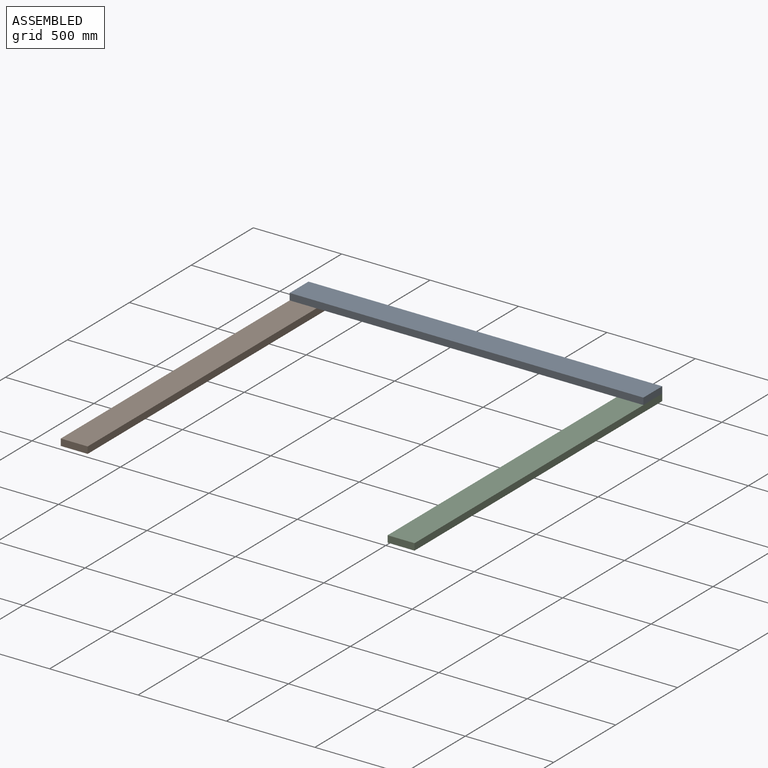
[diagram: assembled view]
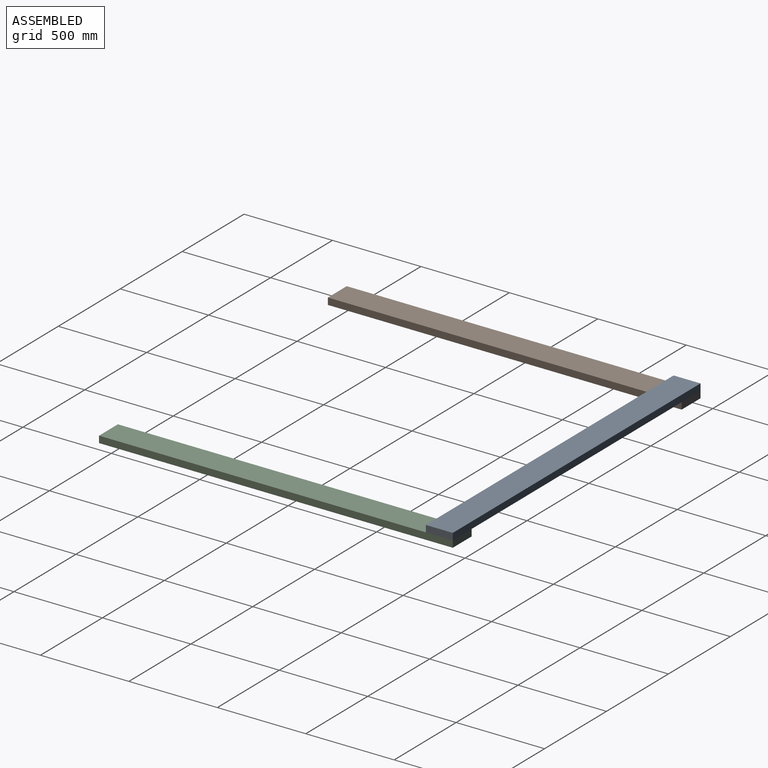
[diagram: assembled view, second angle]
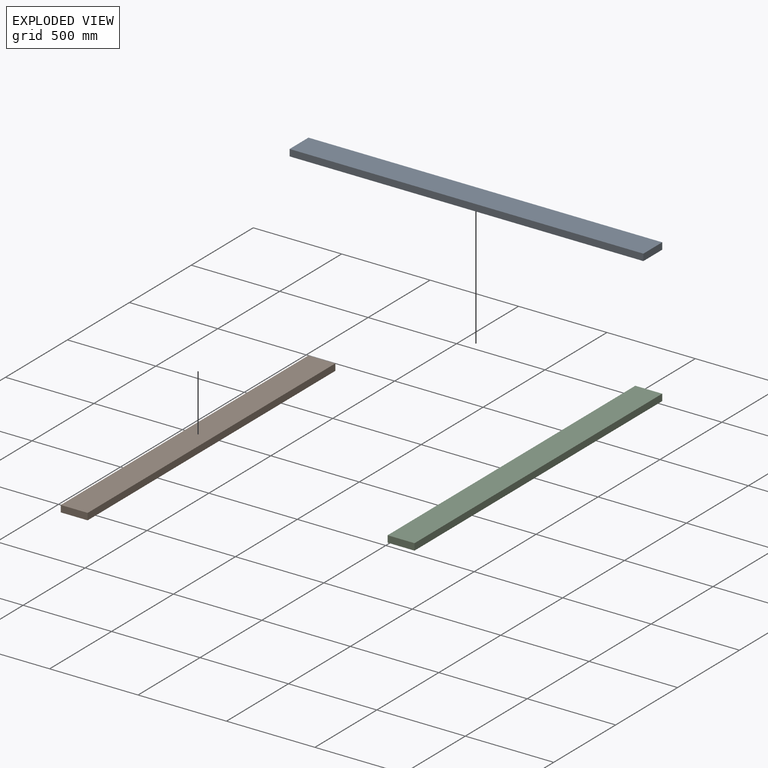
[diagram: exploded view]
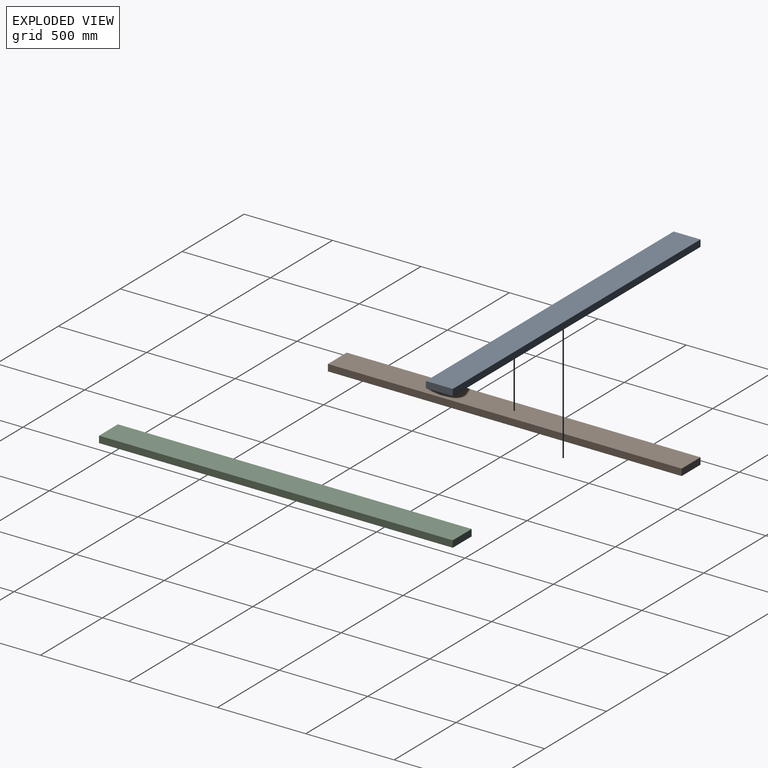
[diagram: exploded view, second angle]
ASSEMBLY  parts=3 mates=6
PART A: 6 faces, bbox 152x2000x38 mm
  f0: plane 2000x152mm, normal (0,0,-1), area 304000mm2, adj f1,f3,f4,f5
  f1: plane 2000x38mm, normal (1,0,0), area 76000mm2, adj f0,f2,f4,f5
  f2: plane 2000x152mm, normal (0,0,1), area 304000mm2, adj f1,f3,f4,f5
  f3: plane 2000x38mm, normal (-1,0,0), area 76000mm2, adj f0,f2,f4,f5
  f4: plane 152x38mm, normal (0,-1,0), area 5776mm2, adj f0,f1,f2,f3
  f5: plane 152x38mm, normal (0,1,0), area 5776mm2, adj f0,f1,f2,f3
PART B: same geometry as A
PART C: same geometry as A
PLACE A rot(axis=(0,0,-1),90deg) t=(611.4,-716.86,1010.7)mm
PLACE B rot(axis=(-0.01,-0.23,-0.97),0deg) t=(-312.6,-1640.86,972.7)mm
PLACE C rot(axis=(0.31,-0.63,-0.71),0deg) t=(1535.4,-1640.86,972.7)mm
MATE planar A.f5 <-> C.f1  axis (1,0,0) through (1611.4,-716.86,1010.7)mm
MATE planar C.f5 <-> A.f3  axis (0,1,0) through (1535.4,-640.86,972.7)mm
MATE planar C.f2 <-> A.f0  axis (0,0,1) through (1535.4,-1640.86,991.7)mm
MATE planar B.f2 <-> A.f0  axis (0,0,1) through (-312.6,-1640.86,991.7)mm
MATE planar B.f3 <-> A.f4  axis (-1,0,0) through (-388.6,-1640.86,972.7)mm
MATE planar B.f5 <-> A.f3  axis (0,1,0) through (-312.6,-640.86,972.7)mm
